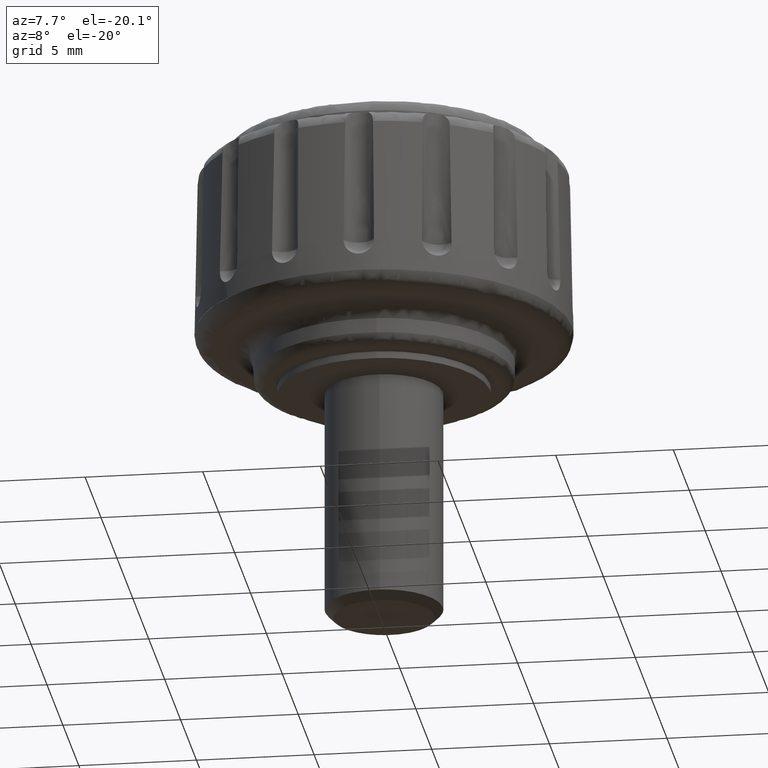
[diagram: clean part render]
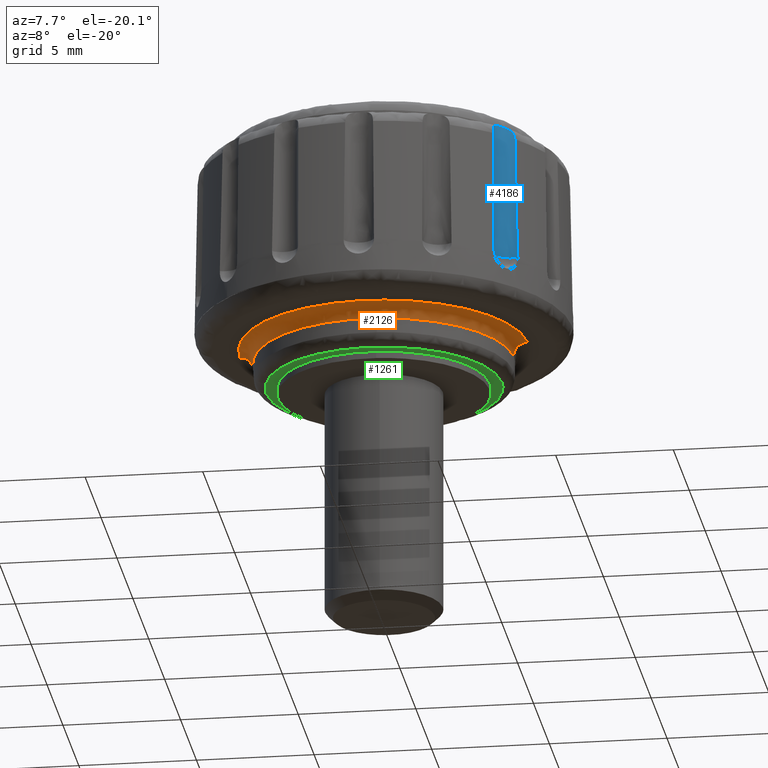
[diagram: same view with three faces highlighted in distinct colors, each labeled with its STEP entity id]
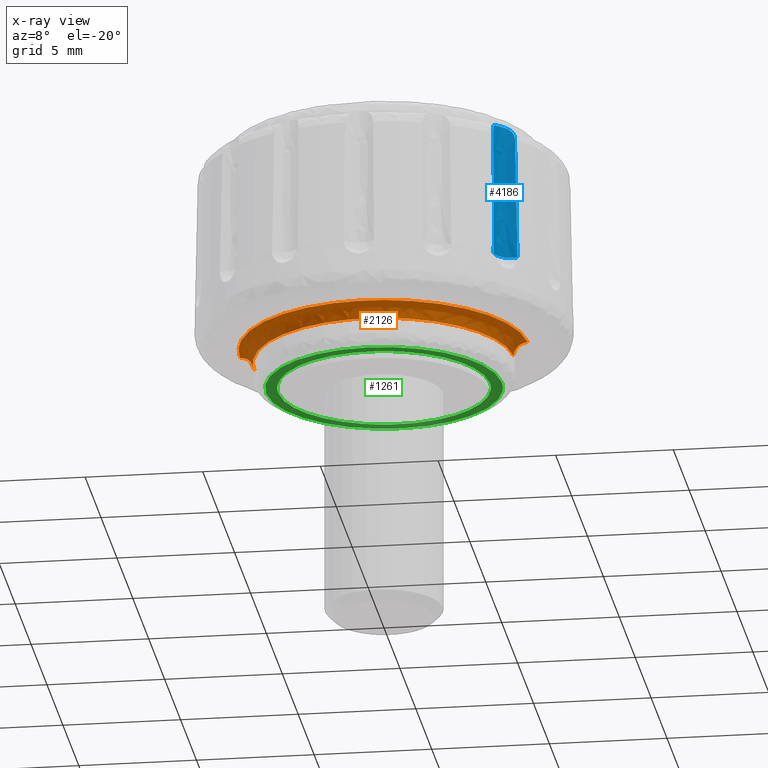
[diagram: x-ray of the same camera — body ghosted, the three highlighted faces saturated]
A machine part, auxiliary view with three faces highlighted in distinct colors.
The next image is the same camera in x-ray (body ghosted, the three faces saturated) — at least one of them is partly hidden behind the body in this view.
Their STEP definitions:

[orange] entity #2126 — the highlighted face is a freeform B-spline surface patch.
#1790=CARTESIAN_POINT('',(5.527468860223757,-0.138949701831812,1.415704741182414));
#1791=VERTEX_POINT('',#1790);
#1805=CARTESIAN_POINT('',(0.433811708444230,-5.512170743774437,1.415704349412395));
#1806=VERTEX_POINT('',#1805);
#1807=CARTESIAN_POINT('',(5.527468860223757,-0.138949701831813,1.415704741182413));
#1808=CARTESIAN_POINT('',(5.402226061000728,-5.121153050317577,1.415704545326632));
#1809=CARTESIAN_POINT('',(0.433811708444230,-5.512170743774437,1.415704349412396));
#1817=(BOUNDED_CURVE()B_SPLINE_CURVE(2,(#1807,#1808,#1809),.UNSPECIFIED.,.F.,.U.)B_SPLINE_CURVE_WITH_KNOTS((3,3),(0.504420108230490,0.736331471781868),.UNSPECIFIED.)CURVE()GEOMETRIC_REPRESENTATION_ITEM()RATIONAL_B_SPLINE_CURVE((0.989826157680904,0.727732679519375,0.969723713347207))REPRESENTATION_ITEM(''));
#1818=EDGE_CURVE('',#1791,#1806,#1817,.T.);
#1848=CARTESIAN_POINT('',(-5.529215045586874,0.0,1.415704741050514));
#1849=VERTEX_POINT('',#1848);
#1850=CARTESIAN_POINT('',(0.433811708444230,-5.512170743774437,1.415704349412396));
#1851=CARTESIAN_POINT('',(0.217240685594528,-5.529215035545991,1.415704356523069));
#1852=CARTESIAN_POINT('',(-7.726676E-010,-5.529215035746888,1.415704364215545));
#1853=CARTESIAN_POINT('',(-5.529215045958848,-5.529215040860168,1.415704560004630));
#1854=CARTESIAN_POINT('',(-5.529215045586874,0.0,1.415704741050514));
#1862=(BOUNDED_CURVE()B_SPLINE_CURVE(2,(#1850,#1851,#1852,#1853,#1854),.UNSPECIFIED.,.F.,.U.)B_SPLINE_CURVE_WITH_KNOTS((3,2,3),(0.736331471781868,0.750000000000000,1.0),.UNSPECIFIED.)CURVE()GEOMETRIC_REPRESENTATION_ITEM()RATIONAL_B_SPLINE_CURVE((0.969723713347207,0.983986323094995,1.0,0.707106781186547,1.0))REPRESENTATION_ITEM(''));
#1863=EDGE_CURVE('',#1806,#1849,#1862,.T.);
#1865=CARTESIAN_POINT('',(-5.527468860223758,0.138949701831812,1.415704741182414));
#1866=VERTEX_POINT('',#1865);
#1867=CARTESIAN_POINT('',(-5.529215045586874,0.0,1.415704741050514));
#1868=CARTESIAN_POINT('',(-5.529215045588600,0.069485823099705,1.415704741116463));
#1869=CARTESIAN_POINT('',(-5.527468860223758,0.138949701831813,1.415704741182414));
#1877=(BOUNDED_CURVE()B_SPLINE_CURVE(2,(#1867,#1868,#1869),.UNSPECIFIED.,.F.,.U.)B_SPLINE_CURVE_WITH_KNOTS((3,3),(0.0,0.004420108230490),.UNSPECIFIED.)CURVE()GEOMETRIC_REPRESENTATION_ITEM()RATIONAL_B_SPLINE_CURVE((1.0,0.994821521091472,0.989826157680904))REPRESENTATION_ITEM(''));
#1878=EDGE_CURVE('',#1849,#1866,#1877,.T.);
#2023=CARTESIAN_POINT('',(5.527801531376706,-0.138958064521271,1.374588922967464));
#2024=CARTESIAN_POINT('',(5.388843466855431,-5.666759595897976,1.374588922967463));
#2025=CARTESIAN_POINT('',(-0.138958064521272,-5.527801531376706,1.374588922967464));
#2026=CARTESIAN_POINT('',(-5.666759595897976,-5.388843466855431,1.374588922967463));
#2027=CARTESIAN_POINT('',(-5.527801531376706,0.138958064521271,1.374588922967464));
#2028=CARTESIAN_POINT('',(5.499402958791566,-0.138244180229442,2.044738926686775));
#2029=CARTESIAN_POINT('',(5.361158778562123,-5.637647139021010,2.044738926686774));
#2030=CARTESIAN_POINT('',(-0.138244180229443,-5.499402958791566,2.044738926686775));
#2031=CARTESIAN_POINT('',(-5.637647139021008,-5.361158778562123,2.044738926686774));
#2032=CARTESIAN_POINT('',(-5.499402958791566,0.138244180229443,2.044738926686775));
#2033=CARTESIAN_POINT('',(6.168353145038346,-0.155060272958959,1.998577434224362));
#2034=CARTESIAN_POINT('',(6.013292872079386,-6.323413417997307,1.998577434224363));
#2035=CARTESIAN_POINT('',(-0.155060272958960,-6.168353145038346,1.998577434224362));
#2036=CARTESIAN_POINT('',(-6.323413417997307,-6.013292872079386,1.998577434224363));
#2037=CARTESIAN_POINT('',(-6.168353145038346,0.155060272958960,1.998577434224362));
#2045=(BOUNDED_SURFACE()B_SPLINE_SURFACE(2,2,((#2023,#2028,#2033),(#2024,#2029,#2034),(#2025,#2030,#2035),(#2026,#2031,#2036),(#2027,#2032,#2037)),.UNSPECIFIED.,.F.,.F.,.U.)B_SPLINE_SURFACE_WITH_KNOTS((3,2,3),(3,3),(0.0,10.223290745503840,20.446581491007681),(0.0,1.073237475632451),.UNSPECIFIED.)GEOMETRIC_REPRESENTATION_ITEM()RATIONAL_B_SPLINE_SURFACE(((0.915775085931544,0.609025892581133,0.911204563995581),(0.647550773303888,0.430646338562309,0.644318926249407),(0.915775085931544,0.609025892581133,0.911204563995581),(0.647550773303888,0.430646338562309,0.644318926249407),(0.915775085931544,0.609025892581133,0.911204563995581)))REPRESENTATION_ITEM('')SURFACE());
#2046=ORIENTED_EDGE('',*,*,#1818,.F.);
#2047=CARTESIAN_POINT('',(6.127073870405544,-0.154022593198753,2.0));
#2048=VERTEX_POINT('',#2047);
#2049=CARTESIAN_POINT('',(5.527468860223756,-0.138949701831813,1.415704741182413));
#2050=CARTESIAN_POINT('',(5.542762946603724,-0.139334165125960,1.999999999338053));
#2051=CARTESIAN_POINT('',(6.127073870405544,-0.154022593198753,2.0));
#2059=(BOUNDED_CURVE()B_SPLINE_CURVE(2,(#2049,#2050,#2051),.UNSPECIFIED.,.F.,.U.)B_SPLINE_CURVE_WITH_KNOTS((3,3),(-1.731978048908133,-0.280008951030443),.UNSPECIFIED.)CURVE()GEOMETRIC_REPRESENTATION_ITEM()RATIONAL_B_SPLINE_CURVE((0.889169974414635,0.635423441820582,0.885014577029213))REPRESENTATION_ITEM(''));
#2060=EDGE_CURVE('',#1791,#2048,#2059,.T.);
#2061=ORIENTED_EDGE('',*,*,#2060,.T.);
#2062=CARTESIAN_POINT('',(-6.129009477962280,0.0,2.0));
#2063=VERTEX_POINT('',#2062);
#2064=CARTESIAN_POINT('',(6.127073870405544,-0.154022593198753,2.0));
#2065=CARTESIAN_POINT('',(6.120207164768896,-0.427512452556867,2.000000000000001));
#2066=CARTESIAN_POINT('',(6.064048286626614,-1.035627951618357,2.000000000000003));
#2067=CARTESIAN_POINT('',(5.858391619386146,-1.871641189425489,1.999999999999993));
#2068=CARTESIAN_POINT('',(5.517452464436680,-2.714795385766105,2.000000000000008));
#2069=CARTESIAN_POINT('',(5.117820509505402,-3.405936593290792,1.999999999999978));
#2070=CARTESIAN_POINT('',(4.584568795739928,-4.095620669498813,2.000000000000011));
#2071=CARTESIAN_POINT('',(3.954147224456932,-4.717719360405487,1.999999999999998));
#2072=CARTESIAN_POINT('',(3.170753972830316,-5.273932946672320,2.0));
#2073=CARTESIAN_POINT('',(2.400683664726839,-5.657563501002833,2.0));
#2074=CARTESIAN_POINT('',(1.741879526538881,-5.886437431159643,2.000000000000002));
#2075=CARTESIAN_POINT('',(1.040149073231004,-6.055944444774585,2.000000000000008));
#2076=CARTESIAN_POINT('',(0.185134031131747,-6.154952209321271,1.999999999999937));
#2077=CARTESIAN_POINT('',(-0.700019769924364,-6.108760615706263,1.999999999999942));
#2078=CARTESIAN_POINT('',(-1.445934183392294,-5.965980381927143,1.999999999999988));
#2079=CARTESIAN_POINT('',(-2.090850474427202,-5.776012970504042,2.000000000000032));
#2080=CARTESIAN_POINT('',(-2.847826844782219,-5.454101148582767,1.999999999999931));
#2081=CARTESIAN_POINT('',(-3.569436949964812,-5.007400041436637,2.000000000000151));
#2082=CARTESIAN_POINT('',(-4.134113428165875,-4.537225304429346,1.999999999999945));
#2083=CARTESIAN_POINT('',(-4.563919382735114,-4.104628751922997,2.000000000000034));
#2084=CARTESIAN_POINT('',(-4.975059699477939,-3.604262952475888,1.999999999999983));
#2085=CARTESIAN_POINT('',(-5.404835689063420,-2.932477275869673,2.000000000000013));
#2086=CARTESIAN_POINT('',(-5.726550719435758,-2.229350803794971,1.999999999999985));
#2087=CARTESIAN_POINT('',(-5.954125017742477,-1.504784593397135,2.000000000000038));
#2088=CARTESIAN_POINT('',(-6.093983151987694,-0.795859705651692,1.999999999999885));
#2089=CARTESIAN_POINT('',(-6.129019849911443,-0.273577825698786,2.000000000000135));
#2090=CARTESIAN_POINT('',(-6.129009477962280,0.0,2.0));
#2091=B_SPLINE_CURVE_WITH_KNOTS('',3,(#2064,#2065,#2066,#2067,#2068,#2069,#2070,#2071,#2072,#2073,#2074,#2075,#2076,#2077,#2078,#2079,#2080,#2081,#2082,#2083,#2084,#2085,#2086,#2087,#2088,#2089,#2090),.UNSPECIFIED.,.F.,.U.,(4,1,1,1,1,1,1,1,1,1,1,1,1,1,1,1,1,1,1,1,1,1,1,1,4),(0.000000010370524,0.820730164666109,1.828001617573076,2.574129705413149,3.544097840758015,4.215615704507803,5.185581072933738,6.192855020366656,7.088211384997809,7.759722529554987,8.282006338560549,9.251983354312511,10.333841701653490,10.930753483973410,11.527650778613561,12.348395503710270,13.392970139339941,14.064487114292429,14.549470636215020,15.220984202301210,16.004417090929429,16.937082205561289,17.533985547657451,18.280108678447519,19.100841826094129),.UNSPECIFIED.);
#2092=EDGE_CURVE('',#2048,#2063,#2091,.T.);
#2093=ORIENTED_EDGE('',*,*,#2092,.T.);
#2094=CARTESIAN_POINT('',(-6.127073870405544,0.154022593198754,2.0));
#2095=VERTEX_POINT('',#2094);
#2096=CARTESIAN_POINT('',(-6.129009477962280,0.0,2.0));
#2097=CARTESIAN_POINT('',(-6.129009477622634,0.077023459016286,2.000000000000000));
#2098=CARTESIAN_POINT('',(-6.127073870405544,0.154022593198754,2.000000000000000));
#2106=(BOUNDED_CURVE()B_SPLINE_CURVE(2,(#2096,#2097,#2098),.UNSPECIFIED.,.F.,.U.)B_SPLINE_CURVE_WITH_KNOTS((3,3),(0.0,0.004420108231949),.UNSPECIFIED.)CURVE()GEOMETRIC_REPRESENTATION_ITEM()RATIONAL_B_SPLINE_CURVE((1.0,0.994821521089762,0.989826157677605))REPRESENTATION_ITEM(''));
#2107=EDGE_CURVE('',#2063,#2095,#2106,.T.);
#2108=ORIENTED_EDGE('',*,*,#2107,.T.);
#2109=CARTESIAN_POINT('',(-5.527468860223760,0.138949701831812,1.415704741182414));
#2110=CARTESIAN_POINT('',(-5.542762946603727,0.139334165125961,1.999999999338054));
#2111=CARTESIAN_POINT('',(-6.127073870405544,0.154022593198754,2.0));
#2119=(BOUNDED_CURVE()B_SPLINE_CURVE(2,(#2109,#2110,#2111),.UNSPECIFIED.,.F.,.U.)B_SPLINE_CURVE_WITH_KNOTS((3,3),(-1.731978048908132,-0.280008951030443),.UNSPECIFIED.)CURVE()GEOMETRIC_REPRESENTATION_ITEM()RATIONAL_B_SPLINE_CURVE((0.889169974414634,0.635423441820582,0.885014577029213))REPRESENTATION_ITEM(''));
#2120=EDGE_CURVE('',#1866,#2095,#2119,.T.);
#2121=ORIENTED_EDGE('',*,*,#2120,.F.);
#2122=ORIENTED_EDGE('',*,*,#1878,.F.);
#2123=ORIENTED_EDGE('',*,*,#1863,.F.);
#2124=EDGE_LOOP('',(#2046,#2061,#2093,#2108,#2121,#2122,#2123));
#2125=FACE_OUTER_BOUND('',#2124,.T.);
#2126=ADVANCED_FACE('',(#2125),#2045,.F.);

[blue] entity #4186 — the highlighted face is a freeform B-spline surface patch.
#2793=CARTESIAN_POINT('',(5.461426303744900,-5.787072312373681,4.099997999999999));
#2794=VERTEX_POINT('',#2793);
#2795=CARTESIAN_POINT('',(6.326244623515130,-4.826594263383310,4.099998000000050));
#2796=VERTEX_POINT('',#2795);
#2844=CARTESIAN_POINT('',(6.326244623515130,-4.826594263383310,4.099998000000050));
#2845=CARTESIAN_POINT('',(6.265575090708230,-4.805207501026152,4.099998000000050));
#2846=CARTESIAN_POINT('',(6.163752311551462,-4.784542490706103,4.099998000000054));
#2847=CARTESIAN_POINT('',(6.008867870996795,-4.787621298433874,4.099998000000058));
#2848=CARTESIAN_POINT('',(5.848592128435072,-4.822226334141136,4.099998000000008));
#2849=CARTESIAN_POINT('',(5.698380859642859,-4.900309043572979,4.099998000000173));
#2850=CARTESIAN_POINT('',(5.576175744078046,-5.009166265093825,4.099997999999888));
#2851=CARTESIAN_POINT('',(5.497883351752222,-5.112076996421219,4.099998000000133));
#2852=CARTESIAN_POINT('',(5.435943211012184,-5.235061900943347,4.099998000000045));
#2853=CARTESIAN_POINT('',(5.399804324000884,-5.363842902875463,4.099998000000062));
#2854=CARTESIAN_POINT('',(5.390598744025768,-5.492716018967124,4.099998000000015));
#2855=CARTESIAN_POINT('',(5.403914361178926,-5.633995270097949,4.099998000000126));
#2856=CARTESIAN_POINT('',(5.433818786806949,-5.728967923484129,4.099998000000014));
#2857=CARTESIAN_POINT('',(5.461426303744900,-5.787072312373681,4.099997999999999));
#2858=B_SPLINE_CURVE_WITH_KNOTS('',3,(#2844,#2845,#2846,#2847,#2848,#2849,#2850,#2851,#2852,#2853,#2854,#2855,#2856,#2857),.UNSPECIFIED.,.F.,.U.,(4,1,1,1,1,1,1,1,1,1,1,4),(0.000000034697861,0.192978034327003,0.308774878420057,0.463163517046489,0.681886162016010,0.810539425924830,0.952050813250672,1.067844032871276,1.222235971001104,1.350896182981089,1.453819020028512,1.646802400623418),.UNSPECIFIED.);
#2859=EDGE_CURVE('',#2796,#2794,#2858,.T.);
#4097=CARTESIAN_POINT('',(6.331997682798052,-4.828647968814796,10.091159992343890));
#4098=CARTESIAN_POINT('',(6.331997682798052,-4.828647968814796,3.950218950191402));
#4099=CARTESIAN_POINT('',(5.879614925739440,-4.664929161148539,10.091159992343890));
#4100=CARTESIAN_POINT('',(5.879614925739440,-4.664929161148539,3.950218950191401));
#4101=CARTESIAN_POINT('',(5.564650770396016,-5.028593275017942,10.091159992343890));
#4102=CARTESIAN_POINT('',(5.564650770396016,-5.028593275017942,3.950218950191402));
#4103=CARTESIAN_POINT('',(5.249686615052593,-5.392257388887344,10.091159992343890));
#4104=CARTESIAN_POINT('',(5.249686615052593,-5.392257388887344,3.950218950191401));
#4105=CARTESIAN_POINT('',(5.476323255049826,-5.816627322174774,10.091159992343890));
#4106=CARTESIAN_POINT('',(5.476323255049826,-5.816627322174774,3.950218950191402));
#4114=(BOUNDED_SURFACE()B_SPLINE_SURFACE(1,2,((#4097,#4099,#4101,#4103,#4105),(#4098,#4100,#4102,#4104,#4106)),.UNSPECIFIED.,.F.,.F.,.U.)B_SPLINE_SURFACE_WITH_KNOTS((2,2),(3,2,3),(0.0,6.140941042152488),(0.0,1.0,2.0),.UNSPECIFIED.)GEOMETRIC_REPRESENTATION_ITEM()RATIONAL_B_SPLINE_SURFACE(((1.0,0.824126188622016,1.0,0.824126188622016,1.0),(1.0,0.824126188622016,1.0,0.824126188622016,1.0)))REPRESENTATION_ITEM('')SURFACE());
#4115=CARTESIAN_POINT('',(5.420122522255480,-5.677075191486190,9.412215999999900));
#4116=VERTEX_POINT('',#4115);
#4117=CARTESIAN_POINT('',(5.420122522255479,-5.677075191486185,9.412215999999900));
#4118=CARTESIAN_POINT('',(5.431213620575310,-5.716357083927320,7.641511708373158));
#4119=CARTESIAN_POINT('',(5.445165087540635,-5.752819106737452,5.870766568932623));
#4120=CARTESIAN_POINT('',(5.461426303744900,-5.787072312373685,4.099997999999999));
#4121=QUASI_UNIFORM_CURVE('',3,(#4117,#4118,#4119,#4120),.UNSPECIFIED.,.F.,.U.);
#4122=EDGE_CURVE('',#4116,#2794,#4121,.T.);
#4123=ORIENTED_EDGE('',*,*,#4122,.T.);
#4124=ORIENTED_EDGE('',*,*,#2859,.F.);
#4125=CARTESIAN_POINT('',(6.212532657558819,-4.797014578340810,9.412215999999900));
#4126=VERTEX_POINT('',#4125);
#4127=CARTESIAN_POINT('',(6.326244623515128,-4.826594263383303,4.099998000000049));
#4128=CARTESIAN_POINT('',(6.290479298008779,-4.814002561863823,5.870766696366895));
#4129=CARTESIAN_POINT('',(6.252758699224529,-4.803938843314417,7.641511528857082));
#4130=CARTESIAN_POINT('',(6.212532657558834,-4.797014578340789,9.412215999999900));
#4131=QUASI_UNIFORM_CURVE('',3,(#4127,#4128,#4129,#4130),.UNSPECIFIED.,.F.,.U.);
#4132=EDGE_CURVE('',#2796,#4126,#4131,.T.);
#4133=ORIENTED_EDGE('',*,*,#4132,.T.);
#4134=CARTESIAN_POINT('',(6.212532657558823,-4.797014578340805,9.412215999999900));
#4135=CARTESIAN_POINT('',(6.211585321152918,-4.796851509641475,9.453916978650057));
#4136=CARTESIAN_POINT('',(6.205891413118938,-4.795823907410137,9.494705356962378));
#4137=CARTESIAN_POINT('',(6.190252516518003,-4.793527891024000,9.554538196299596));
#4138=CARTESIAN_POINT('',(6.183792996459554,-4.792637247084588,9.574371121964861));
#4139=CARTESIAN_POINT('',(6.168530194626346,-4.790828547276444,9.612979769021205));
#4140=CARTESIAN_POINT('',(6.151048168283324,-4.789007624810040,9.650306229437661));
#4141=CARTESIAN_POINT('',(6.129161825111301,-4.787659109100158,9.685106089512374));
#4142=CARTESIAN_POINT('',(6.105015914048081,-4.786854827629644,9.718620688036369));
#4143=CARTESIAN_POINT('',(6.091699312220396,-4.786729737664953,9.734842281239375));
#4144=CARTESIAN_POINT('',(6.049359747016037,-4.787709811202587,9.780309983706941));
#4145=CARTESIAN_POINT('',(6.017868721211917,-4.790132743205477,9.806636376722523));
#4146=CARTESIAN_POINT('',(5.966454758293185,-4.798328408987923,9.840786535082374));
#4147=CARTESIAN_POINT('',(5.948647415607132,-4.801833075757119,9.851235461969331));
#4148=CARTESIAN_POINT('',(5.912826542558228,-4.810412683848551,9.869958542599814));
#4149=CARTESIAN_POINT('',(5.894689455601482,-4.815504261813231,9.878318822856288));
#4150=CARTESIAN_POINT('',(5.839855786317290,-4.833417571499484,9.900807544248762));
#4151=CARTESIAN_POINT('',(5.802551801562135,-4.849052056651255,9.912355600197691));
#4152=CARTESIAN_POINT('',(5.749044532575349,-4.877311238591019,9.925299691225190));
#4153=CARTESIAN_POINT('',(5.731509140134236,-4.887557031957877,9.928924707190696));
#4154=CARTESIAN_POINT('',(5.697114354835170,-4.909745955903210,9.935012990686715));
#4155=CARTESIAN_POINT('',(5.680174808490173,-4.921756459264525,9.937483331904756));
#4156=CARTESIAN_POINT('',(5.631318729789282,-4.959775144134169,9.943261753614438));
#4157=CARTESIAN_POINT('',(5.601204936762674,-4.987798709940992,9.945034975578093));
#4158=CARTESIAN_POINT('',(5.559743537303516,-5.033850205070541,9.945033646851440));
#4159=CARTESIAN_POINT('',(5.546479614050590,-5.049964050998053,9.944571324500885));
#4160=CARTESIAN_POINT('',(5.521591741266795,-5.083106724177308,9.942692276019681));
#4161=CARTESIAN_POINT('',(5.509984950449341,-5.100092878343893,9.941283351151194));
#4162=CARTESIAN_POINT('',(5.477593252159962,-5.152232068220954,9.935529924069952));
#4163=CARTESIAN_POINT('',(5.459221548033262,-5.188564304771947,9.929712001450543));
#4164=CARTESIAN_POINT('',(5.428922793172160,-5.264125457331597,9.912308955185337));
#4165=CARTESIAN_POINT('',(5.417513927642138,-5.302164064207536,9.900945160164982));
#4166=CARTESIAN_POINT('',(5.405452356892223,-5.358173837531015,9.878688632862497));
#4167=CARTESIAN_POINT('',(5.402261479549792,-5.376705228482249,9.870385579118485));
#4168=CARTESIAN_POINT('',(5.397413351684516,-5.413334263723436,9.851679695909553));
#4169=CARTESIAN_POINT('',(5.395765246666782,-5.431487198050766,9.841217255451332));
#4170=CARTESIAN_POINT('',(5.392940111274488,-5.483301569355208,9.807307234463059));
#4171=CARTESIAN_POINT('',(5.393772341818429,-5.514923864581051,9.781090340372817));
#4172=CARTESIAN_POINT('',(5.397198311055893,-5.557351802420985,9.735580212510056));
#4173=CARTESIAN_POINT('',(5.398705669742660,-5.570601733337298,9.719398916058825));
#4174=CARTESIAN_POINT('',(5.402021343639976,-5.594616344657570,9.685907587720941));
#4175=CARTESIAN_POINT('',(5.403838104401206,-5.605493395051565,9.668484688392208));
#4176=CARTESIAN_POINT('',(5.409311904979462,-5.634828040484269,9.614197892450919));
#4177=CARTESIAN_POINT('',(5.412975105972709,-5.649992830753231,9.575022528015019));
#4178=CARTESIAN_POINT('',(5.418216786578324,-5.670496577157455,9.495266763563880));
#4179=CARTESIAN_POINT('',(5.419860991107655,-5.676148913662064,9.453970005060398));
#4180=CARTESIAN_POINT('',(5.420122522255488,-5.677075191486215,9.412215999999900));
#4181=B_SPLINE_CURVE_WITH_KNOTS('',3,(#4134,#4135,#4136,#4137,#4138,#4139,#4140,#4141,#4142,#4143,#4144,#4145,#4146,#4147,#4148,#4149,#4150,#4151,#4152,#4153,#4154,#4155,#4156,#4157,#4158,#4159,#4160,#4161,#4162,#4163,#4164,#4165,#4166,#4167,#4168,#4169,#4170,#4171,#4172,#4173,#4174,#4175,#4176,#4177,#4178,#4179,#4180),.UNSPECIFIED.,.F.,.U.,(4,2,2,1,2,2,2,2,2,2,2,2,2,2,2,2,2,2,2,2,2,2,2,4),(0.0,0.062499999999999,0.093750000000000,0.125000000000001,0.156250000000002,0.187500000000003,0.250000000000002,0.281250000000002,0.312500000000002,0.375000000000004,0.406250000000004,0.437500000000005,0.500000000000006,0.531250000000006,0.562500000000005,0.625000000000003,0.687500000000001,0.718750000000001,0.750000000000000,0.812499999999999,0.843750000000000,0.875000000000000,0.937500000000000,1.0),.UNSPECIFIED.);
#4182=EDGE_CURVE('',#4126,#4116,#4181,.T.);
#4183=ORIENTED_EDGE('',*,*,#4182,.T.);
#4184=EDGE_LOOP('',(#4123,#4124,#4133,#4183));
#4185=FACE_OUTER_BOUND('',#4184,.T.);
#4186=ADVANCED_FACE('',(#4185),#4114,.F.);

[green] entity #1261 — the highlighted face is a freeform B-spline surface patch.
#1052=CARTESIAN_POINT('',(-0.274718150762136,4.491609023630466,0.300001215204459));
#1053=VERTEX_POINT('',#1052);
#1059=CARTESIAN_POINT('',(4.500002409279020,0.0,0.300001215204459));
#1060=VERTEX_POINT('',#1059);
#1061=CARTESIAN_POINT('',(-0.274718150762136,4.491609023630466,0.300001215204459));
#1062=CARTESIAN_POINT('',(-0.137487295745194,4.500002409279020,0.300001215204459));
#1063=CARTESIAN_POINT('',(0.0,4.500002409279020,0.300001215204459));
#1064=CARTESIAN_POINT('',(4.500002409279020,4.500002409279020,0.300001215204459));
#1065=CARTESIAN_POINT('',(4.500002409279020,0.0,0.300001215204459));
#1073=(BOUNDED_CURVE()B_SPLINE_CURVE(2,(#1061,#1062,#1063,#1064,#1065),.UNSPECIFIED.,.F.,.U.)B_SPLINE_CURVE_WITH_KNOTS((3,2,3),(0.239332978538829,0.250000000000000,0.500000000000000),.UNSPECIFIED.)CURVE()GEOMETRIC_REPRESENTATION_ITEM()RATIONAL_B_SPLINE_CURVE((0.976072076600479,0.987502806996342,1.0,0.707106781186548,1.0))REPRESENTATION_ITEM(''));
#1074=EDGE_CURVE('',#1053,#1060,#1073,.T.);
#1076=CARTESIAN_POINT('',(0.274718150762137,-4.491609023630466,0.300001215204459));
#1077=VERTEX_POINT('',#1076);
#1078=CARTESIAN_POINT('',(4.500002409279020,0.0,0.300001215204459));
#1079=CARTESIAN_POINT('',(4.500002409279020,-4.233179968065469,0.300001215204460));
#1080=CARTESIAN_POINT('',(0.274718150762139,-4.491609023630486,0.300001215204459));
#1088=(BOUNDED_CURVE()B_SPLINE_CURVE(2,(#1078,#1079,#1080),.UNSPECIFIED.,.F.,.U.)B_SPLINE_CURVE_WITH_KNOTS((3,3),(0.500000000000000,0.739332978538829),.UNSPECIFIED.)CURVE()GEOMETRIC_REPRESENTATION_ITEM()RATIONAL_B_SPLINE_CURVE((1.0,0.719603974190206,0.976072076600479))REPRESENTATION_ITEM(''));
#1089=EDGE_CURVE('',#1060,#1077,#1088,.T.);
#1121=CARTESIAN_POINT('',(-4.500002409279020,0.0,0.300001215204459));
#1122=VERTEX_POINT('',#1121);
#1123=CARTESIAN_POINT('',(0.274718150762137,-4.491609023630466,0.300001215204459));
#1124=CARTESIAN_POINT('',(0.137487295745195,-4.500002409279020,0.300001215204460));
#1125=CARTESIAN_POINT('',(0.0,-4.500002409279020,0.300001215204459));
#1126=CARTESIAN_POINT('',(-4.500002409279020,-4.500002409279020,0.300001215204459));
#1127=CARTESIAN_POINT('',(-4.500002409279020,0.0,0.300001215204459));
#1135=(BOUNDED_CURVE()B_SPLINE_CURVE(2,(#1123,#1124,#1125,#1126,#1127),.UNSPECIFIED.,.F.,.U.)B_SPLINE_CURVE_WITH_KNOTS((3,2,3),(0.739332978538829,0.750000000000000,1.0),.UNSPECIFIED.)CURVE()GEOMETRIC_REPRESENTATION_ITEM()RATIONAL_B_SPLINE_CURVE((0.976072076600479,0.987502806996342,1.0,0.707106781186548,1.0))REPRESENTATION_ITEM(''));
#1136=EDGE_CURVE('',#1077,#1122,#1135,.T.);
#1138=CARTESIAN_POINT('',(-4.500002409279020,0.0,0.300001215204459));
#1139=CARTESIAN_POINT('',(-4.500002409279020,4.233179968065472,0.300001215204459));
#1140=CARTESIAN_POINT('',(-0.274718150762137,4.491609023630488,0.300001215204459));
#1148=(BOUNDED_CURVE()B_SPLINE_CURVE(2,(#1138,#1139,#1140),.UNSPECIFIED.,.F.,.U.)B_SPLINE_CURVE_WITH_KNOTS((3,3),(0.0,0.239332978538829),.UNSPECIFIED.)CURVE()GEOMETRIC_REPRESENTATION_ITEM()RATIONAL_B_SPLINE_CURVE((1.0,0.719603974190206,0.976072076600479))REPRESENTATION_ITEM(''));
#1149=EDGE_CURVE('',#1122,#1053,#1148,.T.);
#1155=CARTESIAN_POINT('',(-5.513713338533972,-5.513604549914234,0.300001215204459));
#1156=CARTESIAN_POINT('',(5.513713607448085,-5.513604549914234,0.300001215204459));
#1157=CARTESIAN_POINT('',(-5.513713338533972,5.513604818823043,0.300001215204459));
#1158=CARTESIAN_POINT('',(5.513713607448085,5.513604818823043,0.300001215204459));
#1159=B_SPLINE_SURFACE_WITH_KNOTS('',1,1,((#1155,#1157),(#1156,#1158)),.UNSPECIFIED.,.F.,.F.,.U.,(2,2),(2,2),(0.0,11.027426945982061),(0.0,11.027209368737280),.UNSPECIFIED.);
#1160=CARTESIAN_POINT('',(-5.012922409279030,0.0,0.300001215204460));
#1161=VERTEX_POINT('',#1160);
#1162=CARTESIAN_POINT('',(-5.012526611689736,0.062992583050660,0.300001215204460));
#1163=VERTEX_POINT('',#1162);
#1164=CARTESIAN_POINT('',(-5.012922409279030,0.0,0.300001215204460));
#1165=CARTESIAN_POINT('',(-5.012922410125041,0.031497534981810,0.300001215204460));
#1166=CARTESIAN_POINT('',(-5.012526611689737,0.062992583050660,0.300001215204460));
#1174=(BOUNDED_CURVE()B_SPLINE_CURVE(2,(#1164,#1165,#1166),.UNSPECIFIED.,.F.,.U.)B_SPLINE_CURVE_WITH_KNOTS((3,3),(0.0,0.002215704081859),.UNSPECIFIED.)CURVE()GEOMETRIC_REPRESENTATION_ITEM()RATIONAL_B_SPLINE_CURVE((1.0,0.997404141198105,0.994854295635756))REPRESENTATION_ITEM(''));
#1175=EDGE_CURVE('',#1161,#1163,#1174,.T.);
#1176=ORIENTED_EDGE('',*,*,#1175,.T.);
#1177=CARTESIAN_POINT('',(5.012922409279030,0.0,0.300001215204459));
#1178=VERTEX_POINT('',#1177);
#1179=CARTESIAN_POINT('',(-5.012526611689736,0.062992583050660,0.300001215204460));
#1180=CARTESIAN_POINT('',(-5.007981687569176,0.430603073753724,0.300001215204459));
#1181=CARTESIAN_POINT('',(-4.941288021274405,0.971003316424282,0.300001215204461));
#1182=CARTESIAN_POINT('',(-4.717393589019671,1.736547105873268,0.300001215204458));
#1183=CARTESIAN_POINT('',(-4.466732727217708,2.308803840111889,0.300001215204463));
#1184=CARTESIAN_POINT('',(-4.152646569711154,2.824161708683811,0.300001215204459));
#1185=CARTESIAN_POINT('',(-3.830433559303306,3.246957180872509,0.300001215204463));
#1186=CARTESIAN_POINT('',(-3.495072414057467,3.605470342575714,0.300001215204452));
#1187=CARTESIAN_POINT('',(-3.071600431159276,3.975330274113087,0.300001215204463));
#1188=CARTESIAN_POINT('',(-2.642221067022819,4.272155443549146,0.300001215204458));
#1189=CARTESIAN_POINT('',(-2.138486567150120,4.543983460656825,0.300001215204460));
#1190=CARTESIAN_POINT('',(-1.665534683727212,4.738921804203883,0.300001215204459));
#1191=CARTESIAN_POINT('',(-1.095780921594865,4.903343413352508,0.300001215204460));
#1192=CARTESIAN_POINT('',(-0.469818961369388,5.007479918576711,0.300001215204459));
#1193=CARTESIAN_POINT('',(0.297911915975210,5.026125645730207,0.300001215204460));
#1194=CARTESIAN_POINT('',(1.140784852975515,4.909373326699807,0.300001215204462));
#1195=CARTESIAN_POINT('',(1.920055692174096,4.652868226518329,0.300001215204451));
#1196=CARTESIAN_POINT('',(2.566553185838440,4.321339945571276,0.300001215204471));
#1197=CARTESIAN_POINT('',(3.166478404831358,3.911754779490483,0.300001215204449));
#1198=CARTESIAN_POINT('',(3.735735862928737,3.379432150968876,0.300001215204453));
#1199=CARTESIAN_POINT('',(4.267380741834117,2.676909446505869,0.300001215204472));
#1200=CARTESIAN_POINT('',(4.615568387734452,2.002638886452663,0.300001215204454));
#1201=CARTESIAN_POINT('',(4.854180143473573,1.305987553050793,0.300001215204460));
#1202=CARTESIAN_POINT('',(4.983399264429401,0.673982201104068,0.300001215204460));
#1203=CARTESIAN_POINT('',(5.012927158377748,0.214446905446932,0.300001215204459));
#1204=CARTESIAN_POINT('',(5.012922409279030,0.0,0.300001215204459));
#1205=B_SPLINE_CURVE_WITH_KNOTS('',3,(#1179,#1180,#1181,#1182,#1183,#1184,#1185,#1186,#1187,#1188,#1189,#1190,#1191,#1192,#1193,#1194,#1195,#1196,#1197,#1198,#1199,#1200,#1201,#1202,#1203,#1204),.UNSPECIFIED.,.F.,.U.,(4,1,1,1,1,1,1,1,1,1,1,1,1,1,1,1,1,1,1,1,1,1,1,4),(0.000000021423793,1.102892841933091,1.623694424697462,2.389601769940301,2.971683383001912,3.431222527769489,3.982669995660920,4.442209645093159,5.116200175710914,5.545109052932437,6.157829422385381,6.647995273038942,7.321996401006343,8.057233634687059,8.945676851473664,9.864763845428147,10.508115333575100,11.120838577552909,12.039916796100730,12.836450816985300,13.755536277099649,14.306983601575061,15.042248360057391,15.685590384027821),.UNSPECIFIED.);
#1206=EDGE_CURVE('',#1163,#1178,#1205,.T.);
#1207=ORIENTED_EDGE('',*,*,#1206,.T.);
#1208=CARTESIAN_POINT('',(5.012526611689735,-0.062992583050658,0.300001215204460));
#1209=VERTEX_POINT('',#1208);
#1210=CARTESIAN_POINT('',(5.012922409279030,0.0,0.300001215204459));
#1211=CARTESIAN_POINT('',(5.012922410125041,-0.031497534981809,0.300001215204460));
#1212=CARTESIAN_POINT('',(5.012526611689736,-0.062992583050658,0.300001215204460));
#1220=(BOUNDED_CURVE()B_SPLINE_CURVE(2,(#1210,#1211,#1212),.UNSPECIFIED.,.F.,.U.)B_SPLINE_CURVE_WITH_KNOTS((3,3),(0.500000000000000,0.502215704081859),.UNSPECIFIED.)CURVE()GEOMETRIC_REPRESENTATION_ITEM()RATIONAL_B_SPLINE_CURVE((1.0,0.997404141198105,0.994854295635756))REPRESENTATION_ITEM(''));
#1221=EDGE_CURVE('',#1178,#1209,#1220,.T.);
#1222=ORIENTED_EDGE('',*,*,#1221,.T.);
#1223=CARTESIAN_POINT('',(5.012526611689735,-0.062992583050658,0.300001215204460));
#1224=CARTESIAN_POINT('',(5.008710611376784,-0.369325414044506,0.300001215204461));
#1225=CARTESIAN_POINT('',(4.952103682498272,-0.909875811513532,0.300001215204458));
#1226=CARTESIAN_POINT('',(4.766286471685302,-1.591360423683474,0.300001215204463));
#1227=CARTESIAN_POINT('',(4.508800507902596,-2.226153328636886,0.300001215204450));
#1228=CARTESIAN_POINT('',(4.162618890244917,-2.831059259441331,0.300001215204480));
#1229=CARTESIAN_POINT('',(3.699767956922560,-3.404904699565746,0.300001215204431));
#1230=CARTESIAN_POINT('',(3.209227290799249,-3.868944978759751,0.300001215204478));
#1231=CARTESIAN_POINT('',(2.745855209738835,-4.206293762132424,0.300001215204455));
#1232=CARTESIAN_POINT('',(2.213422881888256,-4.510649179286214,0.300001215204450));
#1233=CARTESIAN_POINT('',(1.704831300720674,-4.727589562796227,0.300001215204466));
#1234=CARTESIAN_POINT('',(1.135073065234660,-4.891998591603154,0.300001215204457));
#1235=CARTESIAN_POINT('',(0.541096659514719,-4.998296167526373,0.300001215204461));
#1236=CARTESIAN_POINT('',(-0.113692918120446,-5.028216546345176,0.300001215204459));
#1237=CARTESIAN_POINT('',(-0.735087716835504,-4.969054299965076,0.300001215204460));
#1238=CARTESIAN_POINT('',(-1.395683161441282,-4.831800078759148,0.300001215204459));
#1239=CARTESIAN_POINT('',(-2.023549292207744,-4.607990779196375,0.300001215204460));
#1240=CARTESIAN_POINT('',(-2.680699219124108,-4.253060007654441,0.300001215204460));
#1241=CARTESIAN_POINT('',(-3.186540111858804,-3.886880670283365,0.300001215204459));
#1242=CARTESIAN_POINT('',(-3.589928774309307,-3.509662537717019,0.300001215204460));
#1243=CARTESIAN_POINT('',(-3.928481313797523,-3.126903816163388,0.300001215204460));
#1244=CARTESIAN_POINT('',(-4.300317179472605,-2.613126240638556,0.300001215204459));
#1245=CARTESIAN_POINT('',(-4.643803983640857,-1.947971883642298,0.300001215204460));
#1246=CARTESIAN_POINT('',(-4.882425185583858,-1.207253974772482,0.300001215204459));
#1247=CARTESIAN_POINT('',(-4.992221193554041,-0.571866232451003,0.300001215204460));
#1248=CARTESIAN_POINT('',(-5.012923429025816,-0.173599852730272,0.300001215204460));
#1249=CARTESIAN_POINT('',(-5.012922409279030,0.0,0.300001215204460));
#1250=B_SPLINE_CURVE_WITH_KNOTS('',3,(#1223,#1224,#1225,#1226,#1227,#1228,#1229,#1230,#1231,#1232,#1233,#1234,#1235,#1236,#1237,#1238,#1239,#1240,#1241,#1242,#1243,#1244,#1245,#1246,#1247,#1248,#1249),.UNSPECIFIED.,.F.,.U.,(4,1,1,1,1,1,1,1,1,1,1,1,1,1,1,1,1,1,1,1,1,1,1,1,4),(0.000000021421078,0.919064930062486,1.623694424695788,2.113871218785663,2.971683383001153,3.706945925965366,4.319665196109758,4.993657223151779,5.422564931684347,6.157829422385442,6.647995273039026,7.199452961477439,7.965332199511648,8.608690799463648,9.068220862442995,9.987306387486630,10.600023067648911,11.304652452866030,11.856101370981939,12.254368325024149,12.836450816984890,13.755536277099440,14.490791924669001,15.164789364159301,15.685590384027799),.UNSPECIFIED.);
#1251=EDGE_CURVE('',#1209,#1161,#1250,.T.);
#1252=ORIENTED_EDGE('',*,*,#1251,.T.);
#1253=EDGE_LOOP('',(#1176,#1207,#1222,#1252));
#1254=FACE_OUTER_BOUND('',#1253,.T.);
#1255=ORIENTED_EDGE('',*,*,#1089,.F.);
#1256=ORIENTED_EDGE('',*,*,#1074,.F.);
#1257=ORIENTED_EDGE('',*,*,#1149,.F.);
#1258=ORIENTED_EDGE('',*,*,#1136,.F.);
#1259=EDGE_LOOP('',(#1255,#1256,#1257,#1258));
#1260=FACE_BOUND('',#1259,.T.);
#1261=ADVANCED_FACE('',(#1254,#1260),#1159,.F.);